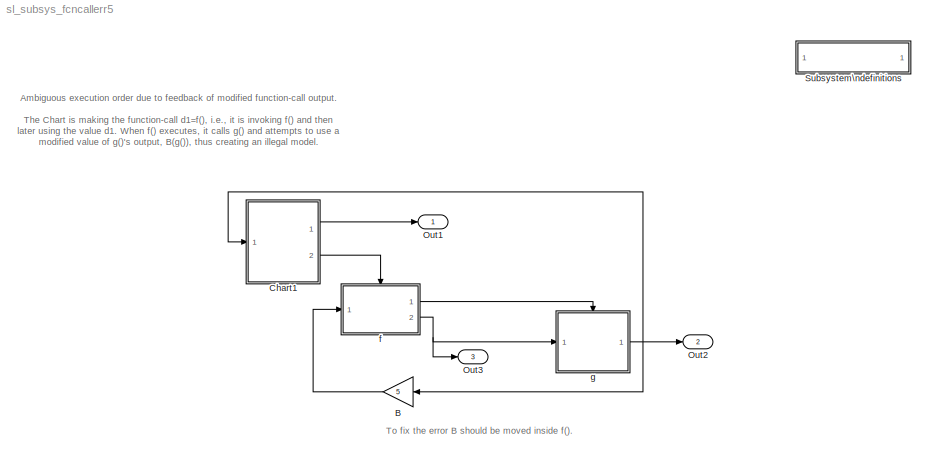
MODEL sl_subsys_fcncallerr5
KIND model
BLOCK [SubSystem]  Subsystem\ndefinitions
  MaskDisplay = disp('Subsystem\\ndefinitions')\n\n
  MaskIconFrame = on
  MaskIconOpaque = on
  MaskIconRotate = none
  MaskIconUnits = autoscale
  MinAlgLoopOccurrences = off
  OpenFcn = helpview([matlabroot,'/toolbox/simulink/simdemos/sl_subsys_definitions.html']);
  Ports = []
  PropExecContextAcrossSSBoundary = on
  RTWSystemCode = Auto
  TreatAsAtomicUnit = off
BLOCK [Gain] B
  Gain = 5
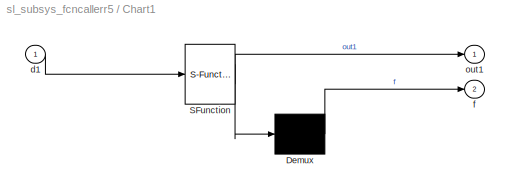
BLOCK [SubSystem] Chart1
  MaskDescription = Stateflow diagram
  MaskDisplay = plot(sf('Private','sfblk','xIcon'),sf('Private','sfblk','yIcon'));text(0.5,0,sf('Private', 'sfblk', 'tIcon'),'HorizontalAl','Center','VerticalAl','Bottom');
  MaskIconFrame = off
  MaskIconOpaque = off
  MaskIconRotate = none
  MaskIconUnits = autoscale
  MaskSelfModifiable = on
  MaskType = Stateflow
  MinAlgLoopOccurrences = off
  Ports = [1, 2]
  PropExecContextAcrossSSBoundary = on
  RTWSystemCode = Auto
  TreatAsAtomicUnit = off
BLOCK [Demux] Chart1/ Demux 
  Outputs = 1
  Ports = [1, 1]
BLOCK [S-Function] Chart1/ SFunction 
  FunctionName = sf_sfun
  PortCounts = [1 2]
  Ports = [1, 2]
  Tag = Stateflow S-Function sl_subsys_fcncallerr5 3
BLOCK [Inport] Chart1/d1
  IconDisplay = Port number
  LatchInput = off
  Port = 1
BLOCK [Outport] Chart1/f
  IconDisplay = Port number
  Port = 2
BLOCK [Outport] Chart1/out1
  IconDisplay = Port number
BLOCK [Outport] Out1
  IconDisplay = Port number
BLOCK [Outport] Out2
  IconDisplay = Port number
  Port = 2
BLOCK [Outport] Out3
  IconDisplay = Port number
  Port = 3
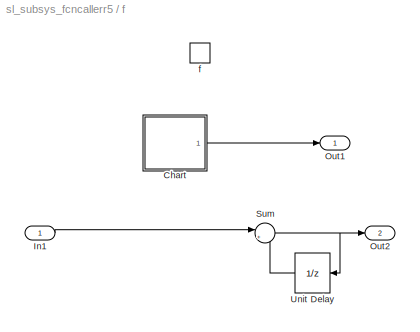
BLOCK [SubSystem] f
  MinAlgLoopOccurrences = off
  Ports = [1, 2, 0, 1]
  PropExecContextAcrossSSBoundary = on
  RTWSystemCode = Auto
  TreatAsAtomicUnit = on
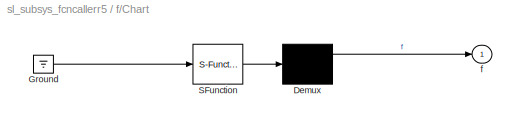
BLOCK [SubSystem] f/Chart
  MaskDescription = Stateflow diagram
  MaskDisplay = plot(sf('Private','sfblk','xIcon'),sf('Private','sfblk','yIcon'));text(0.5,0,sf('Private', 'sfblk', 'tIcon'),'HorizontalAl','Center','VerticalAl','Bottom');
  MaskIconFrame = off
  MaskIconOpaque = off
  MaskIconRotate = none
  MaskIconUnits = autoscale
  MaskSelfModifiable = on
  MaskType = Stateflow
  MinAlgLoopOccurrences = off
  Ports = [0, 1]
  PropExecContextAcrossSSBoundary = on
  RTWSystemCode = Auto
  TreatAsAtomicUnit = off
BLOCK [Demux] f/Chart/ Demux 
  Outputs = 1
  Ports = [1, 1]
BLOCK [Ground] f/Chart/ Ground 
BLOCK [S-Function] f/Chart/ SFunction 
  FunctionName = sf_sfun
  PortCounts = [1 1]
  Ports = [1, 1]
  Tag = Stateflow S-Function sl_subsys_fcncallerr5 2
BLOCK [Outport] f/Chart/f
  IconDisplay = Port number
BLOCK [Inport] f/In1
  IconDisplay = Port number
  LatchInput = off
  Port = 1
BLOCK [Outport] f/Out1
  IconDisplay = Port number
BLOCK [Outport] f/Out2
  IconDisplay = Port number
  Port = 2
BLOCK [Sum] f/Sum
  IconShape = round
  Inputs = |++
  Ports = [2, 1]
BLOCK [UnitDelay] f/Unit Delay
  SampleTime = -1
BLOCK [TriggerPort] f/f
  Ports = []
  TriggerType = function-call
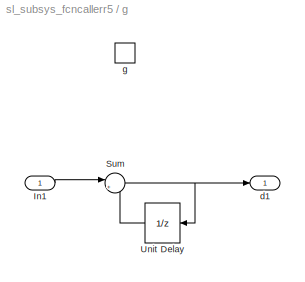
BLOCK [SubSystem] g
  MinAlgLoopOccurrences = off
  Ports = [1, 1, 0, 1]
  PropExecContextAcrossSSBoundary = on
  RTWSystemCode = Auto
  TreatAsAtomicUnit = on
BLOCK [Inport] g/In1
  IconDisplay = Port number
  LatchInput = off
  Port = 1
BLOCK [Sum] g/Sum
  IconShape = round
  Inputs = |++
  Ports = [2, 1]
BLOCK [UnitDelay] g/Unit Delay
  SampleTime = -1
BLOCK [Outport] g/d1
  IconDisplay = Port number
BLOCK [TriggerPort] g/g
  Ports = []
  TriggerType = function-call
ANNOTATION (root): Ambiguous execution order due to feedback of modified function-call output.\n\nThe Chart is making the function-call d1=f(), i.e., it is invoking f() and then \nlater using the value d1. When f() executes, it calls g() and attempts to use a \nmodified value of g()'s output, B(g()), thus creating an illegal model.\n
ANNOTATION (root): To fix the error B should be moved inside f().\n
LINE B:1 -> f:1
LINE Chart1/ Demux :1 -> Chart1/f:1
LINE Chart1/ SFunction :1 -> Chart1/ Demux :1
LINE Chart1/ SFunction :2 -> Chart1/out1:1
LINE Chart1/d1:1 -> Chart1/ SFunction :1
LINE Chart1:1 -> Out1:1
LINE Chart1:2 -> f:trigger
LINE f/Chart/ Demux :1 -> f/Chart/f:1
LINE f/Chart/ Ground :1 -> f/Chart/ SFunction :1
LINE f/Chart/ SFunction :1 -> f/Chart/ Demux :1
LINE f/Chart:1 -> f/Out1:1
LINE f/In1:1 -> f/Sum:1
NET f/Sum:1 -> f/Out2:1, f/Unit Delay:1
LINE f/Unit Delay:1 -> f/Sum:2
LINE f:1 -> g:trigger
NET f:2 -> Out3:1, g:1
LINE g/In1:1 -> g/Sum:1
NET g/Sum:1 -> g/Unit Delay:1, g/d1:1
LINE g/Unit Delay:1 -> g/Sum:2
NET g:1 -> B:1, Chart1:1, Out2:1
note: NET lines group one-source signal fan-out (src -> all destinations, sorted); 1:1 wires keep LINE
CHART f/Chart states=2 transitions=3
  STATE_LABEL 'one'
  STATE_LABEL 'two'
CHART Chart1 states=2 transitions=3
  STATE_LABEL 'one/\\nentry:f;out1=d1+5;'
  STATE_LABEL 'two/\\nentry: f;out1=d1-5;'
